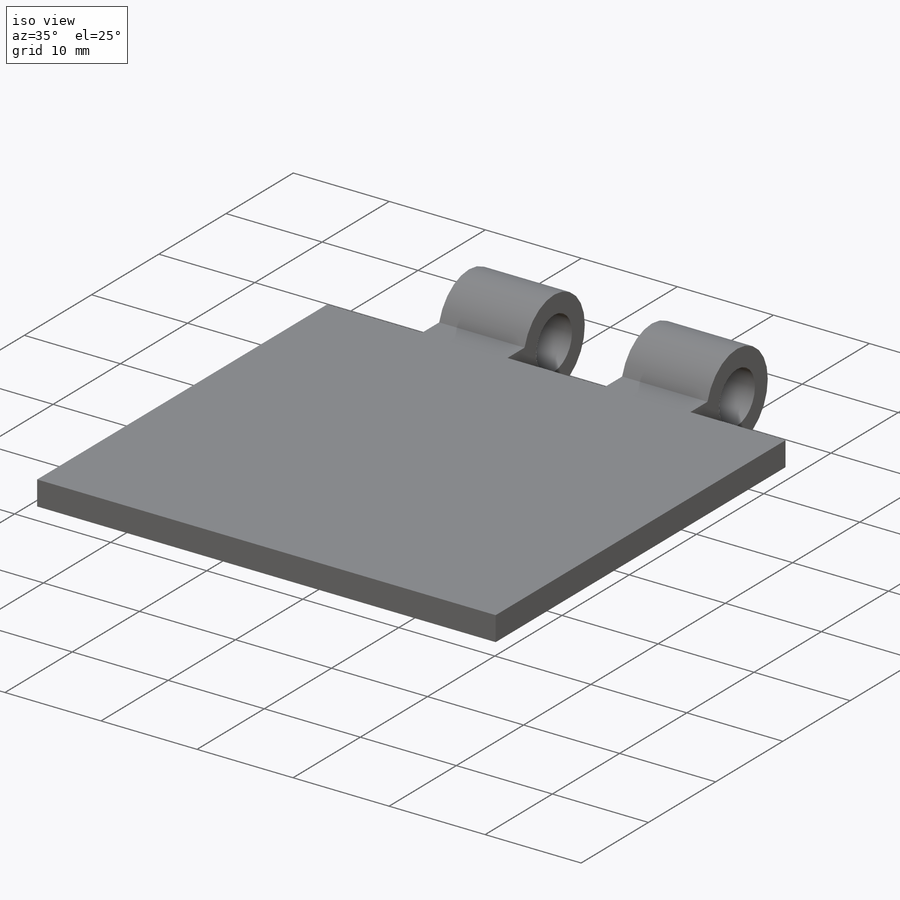
[diagram: iso view]
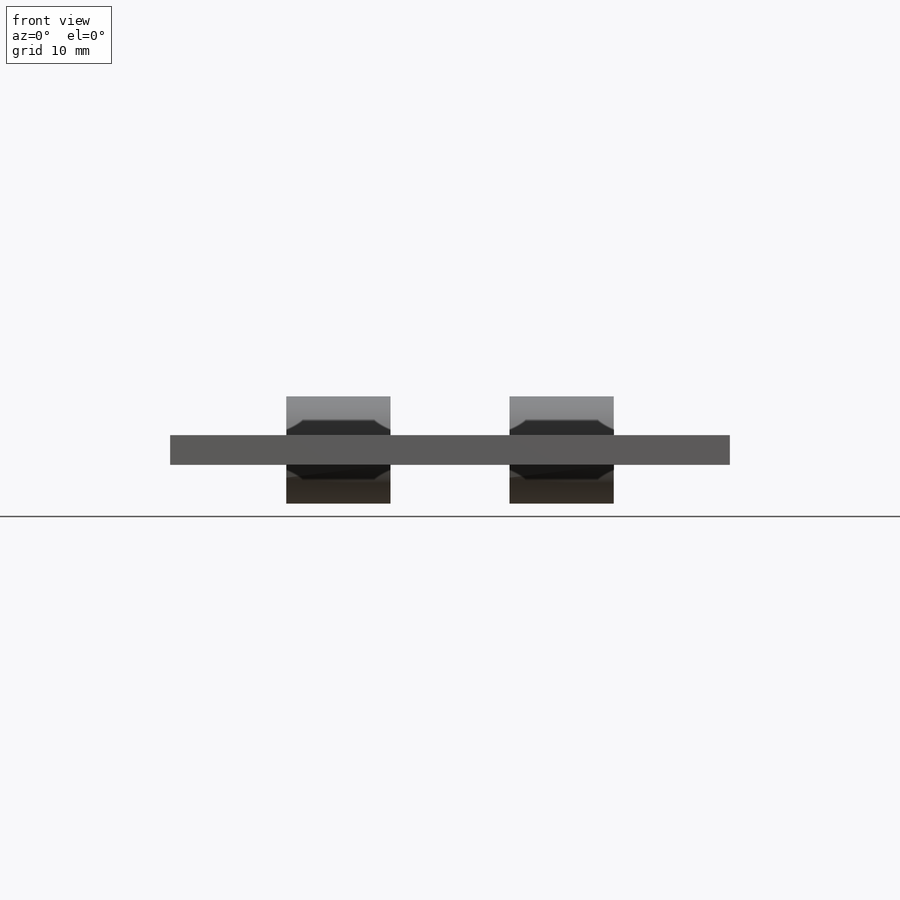
[diagram: front view]
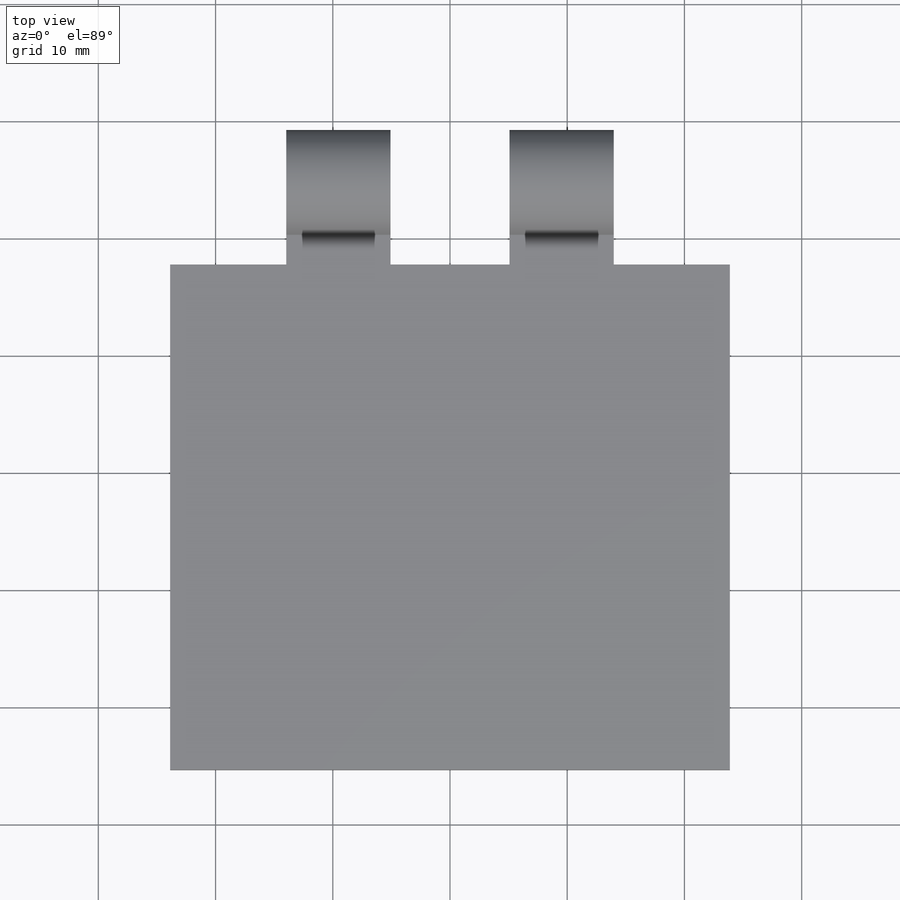
[diagram: top view]
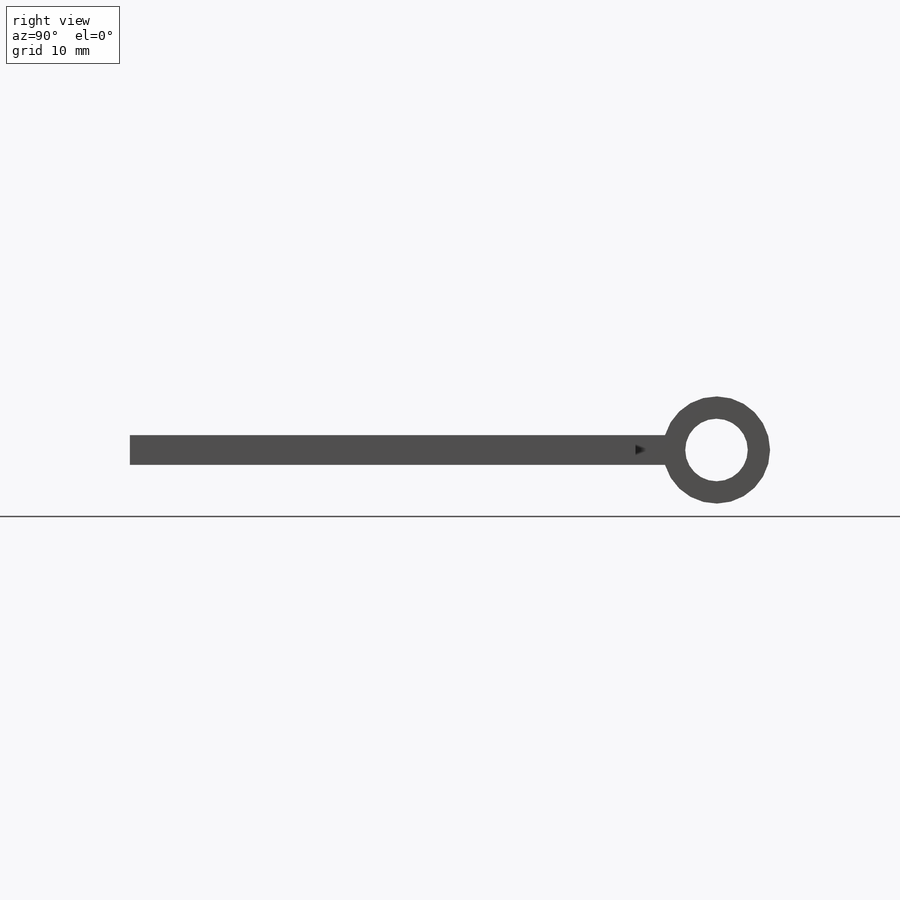
[diagram: right view]
SOLIDWORKS PART (.sldprt)
format: sldprt  version: not decoded by parser v0  size: 215,040 bytes
history: native  units: mm
features: sketch x5, extrude x3, cut_extrude x2, material x1, plane x1 + 1 further entry (+12 scaffold rows collapsed)
feature tree (25):
  scaffold x12  (default folders/planes/origin — collapsed)
  material  "Material <not specified>"
  "Annotations"  RD1=40.64mm
  sketch  "Sketch1"  dims[D1=40.64mm D2=47.752mm D3=23.876mm D4=20.32mm]
  extrude  "Boss-Extrude1"  Depth=2.54mm
  sketch  "Sketch3"  dims[D1=9.144mm D2=4.318mm]
  extrude  "Boss-Extrude3"  Depth=47.752mm
  plane  "Plane1"
  sketch  "Sketch7"  dims[D1=9.5504mm D2=9.5504mm D3=9.5504mm D4=9.5504mm D5=8.89mm D6=8.89mm D7=10.16mm D8=5.08mm]
  cut_extrude  "Cut-Extrude4"  Depth=47.752mm
  sketch  "Sketch8"
  extrude  "Boss-Extrude4"  Depth=5.08mm
  sketch  "Sketch9"  dims[D1=5.334mm]
  cut_extrude  "Cut-Extrude5"  Depth=33.782mm
decode coverage: 9 of 10 modeling features carry decoded parameters; 1 rows unclassified (native names shown)
note: suppression state not decoded; provenance and decode notes live in map.json
